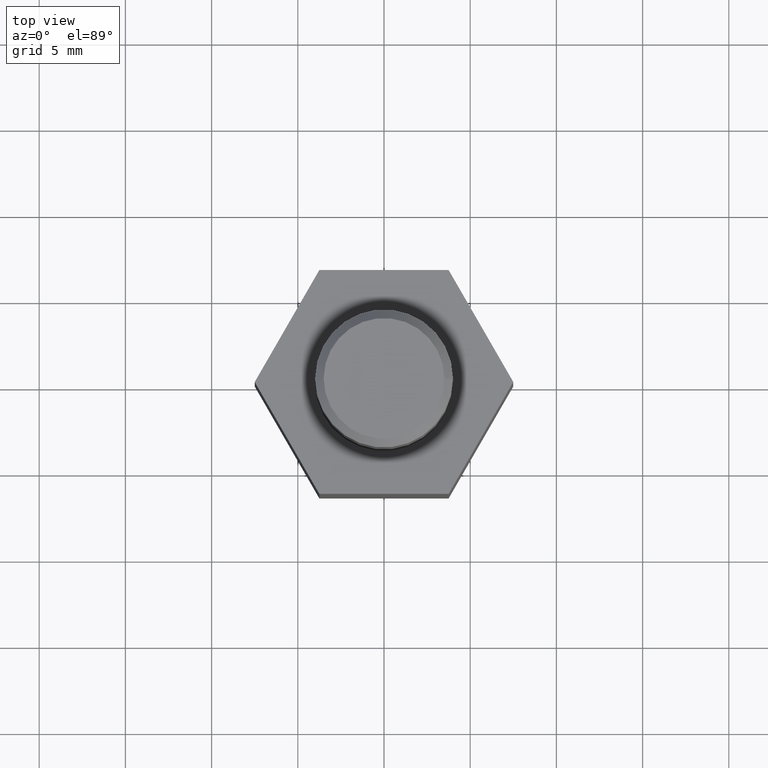
[diagram: clean part render]
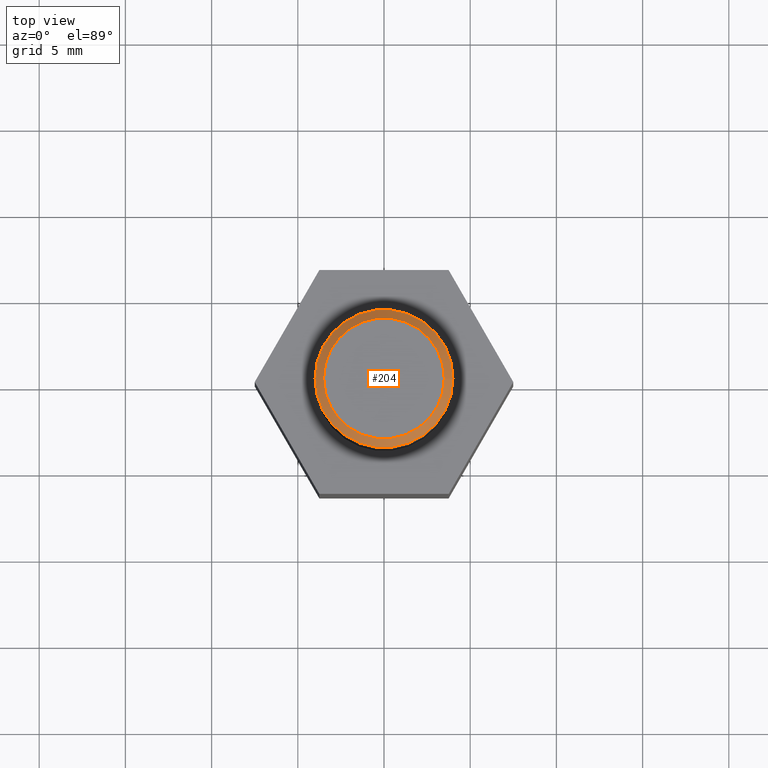
[diagram: same view with one face highlighted and labeled with its STEP entity id]
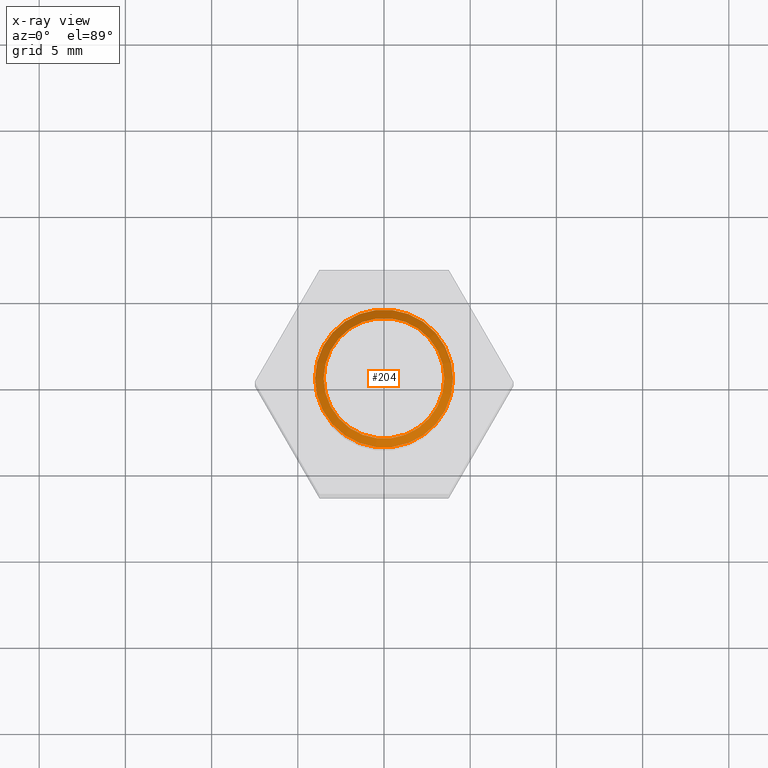
[diagram: x-ray of the same camera — body ghosted, the highlighted face saturated]
A machine part, top view. The second image highlights one B-rep face of the part: STEP entity #204.
The next image is the same camera in x-ray: the body ghosted, the highlighted face saturated — about 0% of this face is hidden behind the body in this view.
In plain terms, the highlighted conical surface has half-angle 45 deg.
Its self-contained STEP definition (entity closure, byte-faithful):
#65=FACE_BOUND('',#89,.T.);
#72=FACE_OUTER_BOUND('',#88,.T.);
#88=EDGE_LOOP('',(#156));
#89=EDGE_LOOP('',(#157));
#106=CIRCLE('',#224,4.);
#107=CIRCLE('',#225,3.5);
#112=VERTEX_POINT('',#308);
#113=VERTEX_POINT('',#310);
#130=EDGE_CURVE('',#112,#112,#106,.T.);
#131=EDGE_CURVE('',#113,#113,#107,.T.);
#156=ORIENTED_EDGE('',*,*,#130,.T.);
#157=ORIENTED_EDGE('',*,*,#131,.T.);
#200=CONICAL_SURFACE('',#223,3.75,44.9999999999998);
#204=ADVANCED_FACE('',(#72,#65),#200,.T.);
#223=AXIS2_PLACEMENT_3D('',#307,#251,#252);
#224=AXIS2_PLACEMENT_3D('',#309,#253,#254);
#225=AXIS2_PLACEMENT_3D('',#311,#255,#256);
#251=DIRECTION('center_axis',(0.,0.,-1.));
#252=DIRECTION('ref_axis',(-1.,0.,0.));
#253=DIRECTION('center_axis',(0.,0.,1.));
#254=DIRECTION('ref_axis',(-1.,0.,0.));
#255=DIRECTION('center_axis',(0.,0.,-1.));
#256=DIRECTION('ref_axis',(-1.,0.,0.));
#307=CARTESIAN_POINT('Origin',(0.,0.,32.));
#308=CARTESIAN_POINT('',(4.,4.89858719658941E-16,31.75));
#309=CARTESIAN_POINT('Origin',(0.,0.,31.75));
#310=CARTESIAN_POINT('',(3.5,-4.28626379701574E-16,32.25));
#311=CARTESIAN_POINT('Origin',(0.,0.,32.25));